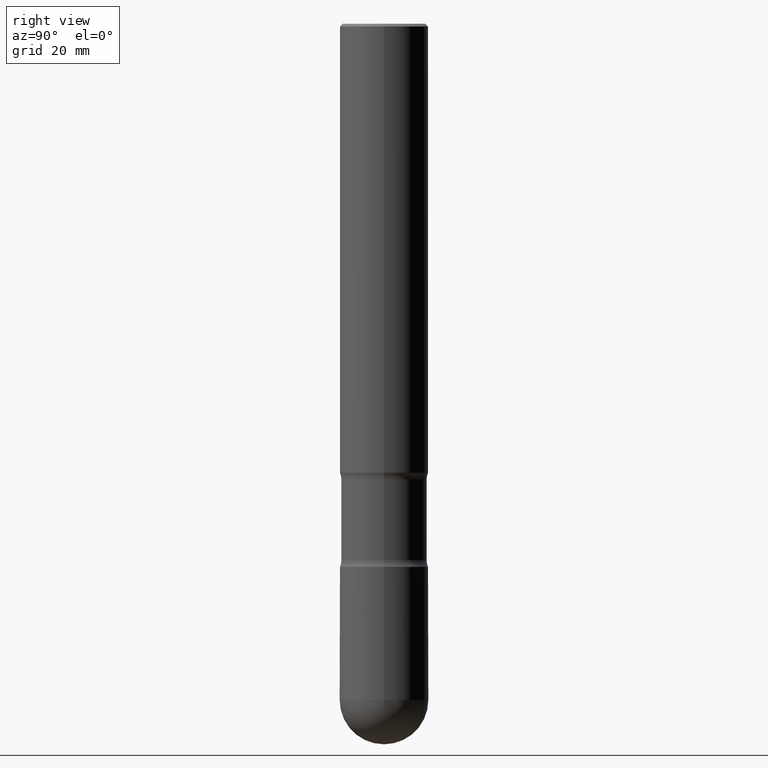
[diagram: clean part render]
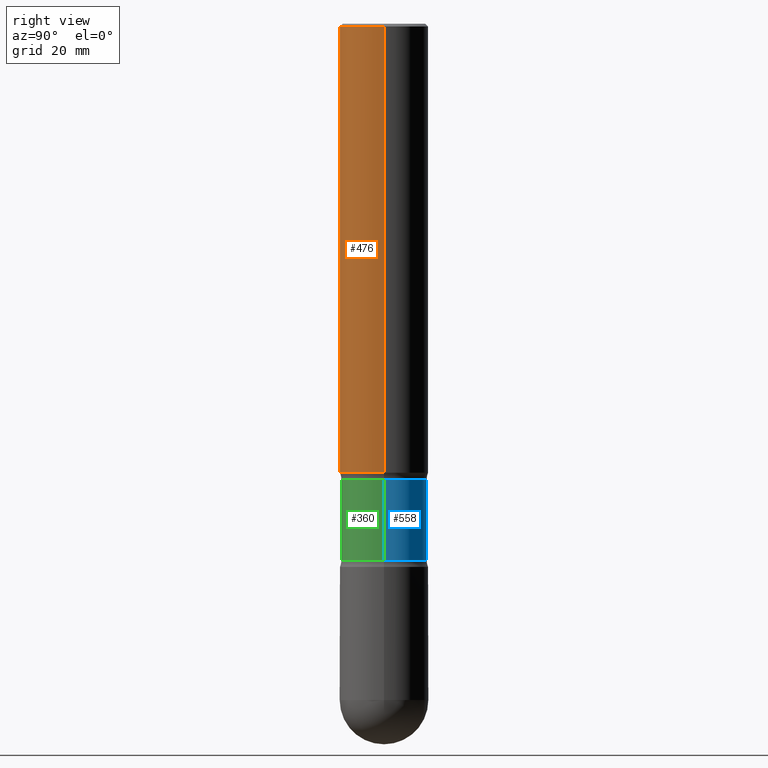
[diagram: same view with three faces highlighted in distinct colors, each labeled with its STEP entity id]
A machine part, right view with three faces highlighted in distinct colors.
Their STEP definitions:

[orange] entity #476 — the highlighted cylindrical surface (partial cylindrical patch) has radius 7.9997 mm, axis along (0, -0, -1).
#33 = CARTESIAN_POINT ( 'NONE',  ( 0.3149500000000000077, -7.762795652571971957E-15, -3.189000000000001389 ) ) ;
#34 = ORIENTED_EDGE ( 'NONE', *, *, #347, .T. ) ;
#36 = AXIS2_PLACEMENT_3D ( 'NONE', #506, #521, #359 ) ;
#38 = AXIS2_PLACEMENT_3D ( 'NONE', #440, #400, #533 ) ;
#53 = DIRECTION ( 'NONE',  ( 2.445468806185136597E-29, -3.491481338843145583E-15, -1.000000000000000000 ) ) ;
#81 = VERTEX_POINT ( 'NONE', #376 ) ;
#86 = EDGE_LOOP ( 'NONE', ( #124, #34, #132, #125 ) ) ;
#124 = ORIENTED_EDGE ( 'NONE', *, *, #225, .F. ) ;
#125 = ORIENTED_EDGE ( 'NONE', *, *, #143, .F. ) ;
#132 = ORIENTED_EDGE ( 'NONE', *, *, #192, .T. ) ;
#143 = EDGE_CURVE ( 'NONE', #481, #81, #556, .T. ) ;
#174 = CARTESIAN_POINT ( 'NONE',  ( 0.3149499999999996747, -2.230543471175005872E-15, -0.02000000000000033348 ) ) ;
#191 = DIRECTION ( 'NONE',  ( -1.000000000000000000, 6.982962677686269866E-15, 0.000000000000000000 ) ) ;
#192 = EDGE_CURVE ( 'NONE', #363, #81, #246, .T. ) ;
#203 = CARTESIAN_POINT ( 'NONE',  ( 0.3149499999999998967, -1.563189629405665068E-14, -3.858300000000000285 ) ) ;
#225 = EDGE_CURVE ( 'NONE', #351, #481, #294, .T. ) ;
#230 = CIRCLE ( 'NONE', #36, 0.3149499999999996747 ) ;
#246 = LINE ( 'NONE', #418, #540 ) ;
#258 = CYLINDRICAL_SURFACE ( 'NONE', #38, 0.3149499999999998967 ) ;
#292 = DIRECTION ( 'NONE',  ( 2.445468806185136877E-29, -3.491481338843145188E-15, -1.000000000000000000 ) ) ;
#294 = LINE ( 'NONE', #203, #508 ) ;
#347 = EDGE_CURVE ( 'NONE', #351, #363, #230, .T. ) ;
#350 = FACE_OUTER_BOUND ( 'NONE', #86, .T. ) ;
#351 = VERTEX_POINT ( 'NONE', #174 ) ;
#353 = CARTESIAN_POINT ( 'NONE',  ( -0.3149499999999996747, 2.129454468560423417E-15, -0.02000000000000033348 ) ) ;
#359 = DIRECTION ( 'NONE',  ( -1.000000000000000000, 6.982962677686266711E-15, 0.000000000000000000 ) ) ;
#363 = VERTEX_POINT ( 'NONE', #353 ) ;
#367 = DIRECTION ( 'NONE',  ( 2.445468806185136877E-29, -3.491481338843145188E-15, -1.000000000000000000 ) ) ;
#376 = CARTESIAN_POINT ( 'NONE',  ( -0.3149500000000000077, -8.935049894233506386E-15, -3.189000000000001389 ) ) ;
#400 = DIRECTION ( 'NONE',  ( 2.445468806185136597E-29, -3.491481338843145583E-15, -1.000000000000000000 ) ) ;
#418 = CARTESIAN_POINT ( 'NONE',  ( -0.3149499999999998967, -1.127189835432122020E-14, -3.858300000000000285 ) ) ;
#419 = AXIS2_PLACEMENT_3D ( 'NONE', #504, #53, #191 ) ;
#440 = CARTESIAN_POINT ( 'NONE',  ( 9.435352294904112142E-29, -1.347118244965850850E-14, -3.858300000000000285 ) ) ;
#476 = ADVANCED_FACE ( 'NONE', ( #350 ), #258, .T. ) ;
#481 = VERTEX_POINT ( 'NONE', #33 ) ;
#504 = CARTESIAN_POINT ( 'NONE',  ( 7.798600022924404670E-29, -1.113433398957079626E-14, -3.189000000000001389 ) ) ;
#506 = CARTESIAN_POINT ( 'NONE',  ( 4.890937612370354609E-31, -6.982962677686407473E-17, -0.02000000000000033348 ) ) ;
#508 = VECTOR ( 'NONE', #292, 39.37007874015748143 ) ;
#521 = DIRECTION ( 'NONE',  ( 2.445468806185136597E-29, -3.491481338843145583E-15, -1.000000000000000000 ) ) ;
#533 = DIRECTION ( 'NONE',  ( -1.000000000000000000, 6.982962677686265922E-15, 0.000000000000000000 ) ) ;
#540 = VECTOR ( 'NONE', #367, 39.37007874015748143 ) ;
#556 = CIRCLE ( 'NONE', #419, 0.3149500000000000077 ) ;

[blue] entity #558 — the highlighted cylindrical surface (partial cylindrical patch) has radius 7.747 mm, axis along (0, -0, -1).
#18 = CARTESIAN_POINT ( 'NONE',  ( -0.3049999999999992717, -9.175166946026462764E-15, -3.237872256956274342 ) ) ;
#24 = AXIS2_PLACEMENT_3D ( 'NONE', #377, #458, #410 ) ;
#42 = EDGE_LOOP ( 'NONE', ( #175, #216, #401, #352 ) ) ;
#71 = CARTESIAN_POINT ( 'NONE',  ( 0.3049999999999992717, -1.334623514300501159E-14, -3.237872256956274342 ) ) ;
#73 = AXIS2_PLACEMENT_3D ( 'NONE', #500, #99, #290 ) ;
#80 = EDGE_CURVE ( 'NONE', #107, #515, #531, .T. ) ;
#82 = DIRECTION ( 'NONE',  ( 2.445468806185136877E-29, -3.491481338843145188E-15, -1.000000000000000000 ) ) ;
#93 = VERTEX_POINT ( 'NONE', #18 ) ;
#97 = CYLINDRICAL_SURFACE ( 'NONE', #241, 0.3049999999999993272 ) ;
#98 = CARTESIAN_POINT ( 'NONE',  ( -0.3049999999999993827, -1.117074225981422655E-14, -3.809427743043726888 ) ) ;
#99 = DIRECTION ( 'NONE',  ( 2.445468806185136597E-29, -3.491481338843145583E-15, -1.000000000000000000 ) ) ;
#100 = VECTOR ( 'NONE', #299, 39.37007874015748143 ) ;
#107 = VERTEX_POINT ( 'NONE', #98 ) ;
#135 = DIRECTION ( 'NONE',  ( -1.000000000000000000, 6.982962677686269077E-15, 0.000000000000000000 ) ) ;
#160 = EDGE_CURVE ( 'NONE', #93, #306, #386, .T. ) ;
#175 = ORIENTED_EDGE ( 'NONE', *, *, #160, .T. ) ;
#216 = ORIENTED_EDGE ( 'NONE', *, *, #392, .T. ) ;
#226 = LINE ( 'NONE', #562, #276 ) ;
#241 = AXIS2_PLACEMENT_3D ( 'NONE', #364, #282, #135 ) ;
#254 = EDGE_CURVE ( 'NONE', #93, #107, #430, .T. ) ;
#276 = VECTOR ( 'NONE', #82, 39.37007874015748143 ) ;
#282 = DIRECTION ( 'NONE',  ( 2.445468806185136597E-29, -3.491481338843145583E-15, -1.000000000000000000 ) ) ;
#290 = DIRECTION ( 'NONE',  ( -1.000000000000000000, 6.982962677686269866E-15, 0.000000000000000000 ) ) ;
#299 = DIRECTION ( 'NONE',  ( 2.445468806185136877E-29, -3.491481338843145188E-15, -1.000000000000000000 ) ) ;
#306 = VERTEX_POINT ( 'NONE', #71 ) ;
#352 = ORIENTED_EDGE ( 'NONE', *, *, #254, .F. ) ;
#364 = CARTESIAN_POINT ( 'NONE',  ( 9.435352294904112142E-29, -1.347118244965850850E-14, -3.858300000000000285 ) ) ;
#377 = CARTESIAN_POINT ( 'NONE',  ( 9.315836715029682052E-29, -1.330054587650853348E-14, -3.809427743043726888 ) ) ;
#386 = CIRCLE ( 'NONE', #73, 0.3049999999999992717 ) ;
#392 = EDGE_CURVE ( 'NONE', #306, #515, #226, .T. ) ;
#401 = ORIENTED_EDGE ( 'NONE', *, *, #80, .F. ) ;
#409 = FACE_OUTER_BOUND ( 'NONE', #42, .T. ) ;
#410 = DIRECTION ( 'NONE',  ( -1.000000000000000000, 6.982962677686267499E-15, 0.000000000000000000 ) ) ;
#430 = LINE ( 'NONE', #559, #100 ) ;
#458 = DIRECTION ( 'NONE',  ( 2.445468806185136597E-29, -3.491481338843145583E-15, -1.000000000000000000 ) ) ;
#480 = CARTESIAN_POINT ( 'NONE',  ( 0.3049999999999993827, -1.439521010893496190E-14, -3.809427743043726888 ) ) ;
#500 = CARTESIAN_POINT ( 'NONE',  ( 7.918115602798833639E-29, -1.130497056272076969E-14, -3.237872256956274342 ) ) ;
#515 = VERTEX_POINT ( 'NONE', #480 ) ;
#531 = CIRCLE ( 'NONE', #24, 0.3049999999999993827 ) ;
#558 = ADVANCED_FACE ( 'NONE', ( #409 ), #97, .T. ) ;
#559 = CARTESIAN_POINT ( 'NONE',  ( -0.3049999999999993272, -1.134137883296420157E-14, -3.858300000000000285 ) ) ;
#562 = CARTESIAN_POINT ( 'NONE',  ( 0.3049999999999993272, -1.556363433897882039E-14, -3.858300000000000285 ) ) ;

[green] entity #360 — the highlighted cylindrical surface (partial cylindrical patch) has radius 7.747 mm, axis along (0, -0, -1).
#1 = DIRECTION ( 'NONE',  ( 2.445468806185136597E-29, -3.491481338843145583E-15, -1.000000000000000000 ) ) ;
#16 = EDGE_LOOP ( 'NONE', ( #478, #479, #488, #224 ) ) ;
#18 = CARTESIAN_POINT ( 'NONE',  ( -0.3049999999999992717, -9.175166946026462764E-15, -3.237872256956274342 ) ) ;
#67 = DIRECTION ( 'NONE',  ( 2.445468806185136597E-29, -3.491481338843145583E-15, -1.000000000000000000 ) ) ;
#71 = CARTESIAN_POINT ( 'NONE',  ( 0.3049999999999992717, -1.334623514300501159E-14, -3.237872256956274342 ) ) ;
#82 = DIRECTION ( 'NONE',  ( 2.445468806185136877E-29, -3.491481338843145188E-15, -1.000000000000000000 ) ) ;
#93 = VERTEX_POINT ( 'NONE', #18 ) ;
#98 = CARTESIAN_POINT ( 'NONE',  ( -0.3049999999999993827, -1.117074225981422655E-14, -3.809427743043726888 ) ) ;
#100 = VECTOR ( 'NONE', #299, 39.37007874015748143 ) ;
#107 = VERTEX_POINT ( 'NONE', #98 ) ;
#112 = DIRECTION ( 'NONE',  ( 2.445468806185136597E-29, -3.491481338843145583E-15, -1.000000000000000000 ) ) ;
#113 = CARTESIAN_POINT ( 'NONE',  ( 7.918115602798833639E-29, -1.130497056272076969E-14, -3.237872256956274342 ) ) ;
#167 = AXIS2_PLACEMENT_3D ( 'NONE', #211, #67, #469 ) ;
#211 = CARTESIAN_POINT ( 'NONE',  ( 9.315836715029682052E-29, -1.330054587650853348E-14, -3.809427743043726888 ) ) ;
#217 = CIRCLE ( 'NONE', #332, 0.3049999999999992717 ) ;
#224 = ORIENTED_EDGE ( 'NONE', *, *, #284, .F. ) ;
#226 = LINE ( 'NONE', #562, #276 ) ;
#254 = EDGE_CURVE ( 'NONE', #93, #107, #430, .T. ) ;
#276 = VECTOR ( 'NONE', #82, 39.37007874015748143 ) ;
#284 = EDGE_CURVE ( 'NONE', #515, #107, #448, .T. ) ;
#299 = DIRECTION ( 'NONE',  ( 2.445468806185136877E-29, -3.491481338843145188E-15, -1.000000000000000000 ) ) ;
#306 = VERTEX_POINT ( 'NONE', #71 ) ;
#316 = EDGE_CURVE ( 'NONE', #306, #93, #217, .T. ) ;
#332 = AXIS2_PLACEMENT_3D ( 'NONE', #113, #112, #346 ) ;
#341 = AXIS2_PLACEMENT_3D ( 'NONE', #528, #1, #482 ) ;
#346 = DIRECTION ( 'NONE',  ( -1.000000000000000000, 6.982962677686269866E-15, 0.000000000000000000 ) ) ;
#355 = CYLINDRICAL_SURFACE ( 'NONE', #341, 0.3049999999999993272 ) ;
#360 = ADVANCED_FACE ( 'NONE', ( #477 ), #355, .T. ) ;
#392 = EDGE_CURVE ( 'NONE', #306, #515, #226, .T. ) ;
#430 = LINE ( 'NONE', #559, #100 ) ;
#448 = CIRCLE ( 'NONE', #167, 0.3049999999999993827 ) ;
#469 = DIRECTION ( 'NONE',  ( -1.000000000000000000, 6.982962677686267499E-15, 0.000000000000000000 ) ) ;
#477 = FACE_OUTER_BOUND ( 'NONE', #16, .T. ) ;
#478 = ORIENTED_EDGE ( 'NONE', *, *, #392, .F. ) ;
#479 = ORIENTED_EDGE ( 'NONE', *, *, #316, .T. ) ;
#480 = CARTESIAN_POINT ( 'NONE',  ( 0.3049999999999993827, -1.439521010893496190E-14, -3.809427743043726888 ) ) ;
#482 = DIRECTION ( 'NONE',  ( -1.000000000000000000, 6.982962677686269077E-15, 0.000000000000000000 ) ) ;
#488 = ORIENTED_EDGE ( 'NONE', *, *, #254, .T. ) ;
#515 = VERTEX_POINT ( 'NONE', #480 ) ;
#528 = CARTESIAN_POINT ( 'NONE',  ( 9.435352294904112142E-29, -1.347118244965850850E-14, -3.858300000000000285 ) ) ;
#559 = CARTESIAN_POINT ( 'NONE',  ( -0.3049999999999993272, -1.134137883296420157E-14, -3.858300000000000285 ) ) ;
#562 = CARTESIAN_POINT ( 'NONE',  ( 0.3049999999999993272, -1.556363433897882039E-14, -3.858300000000000285 ) ) ;